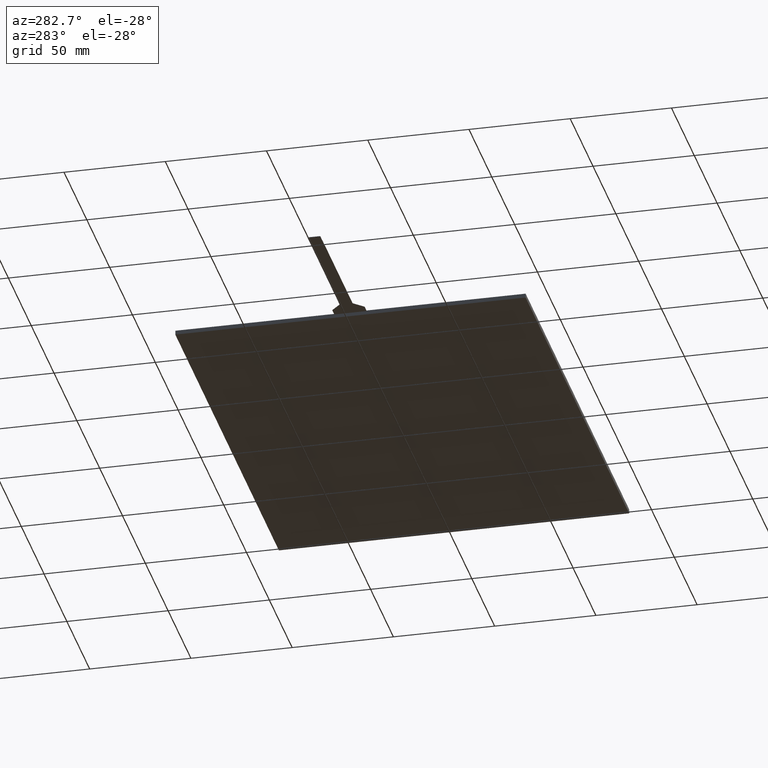
[diagram: clean part render]
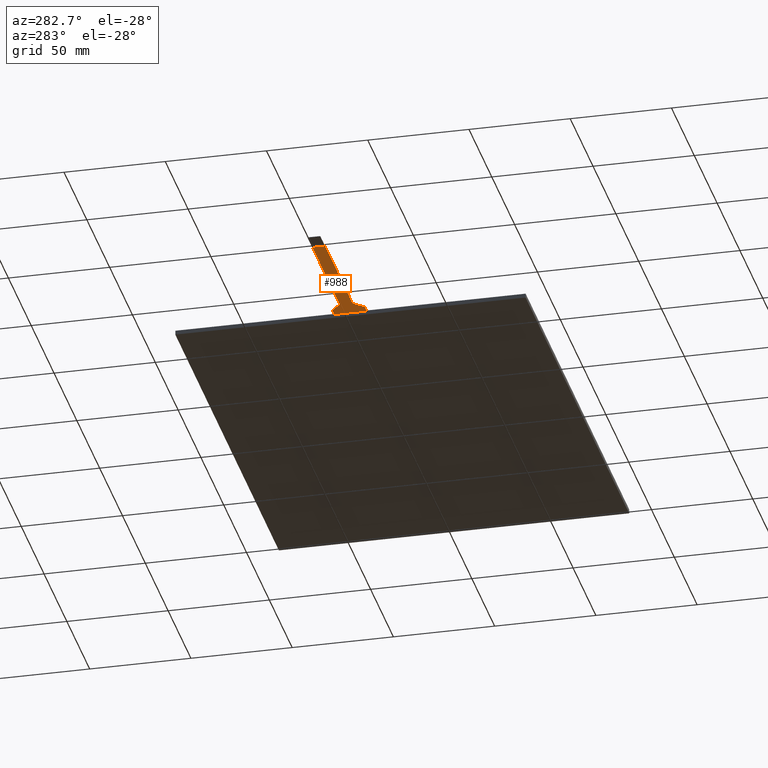
[diagram: same view with one face highlighted and labeled with its STEP entity id]
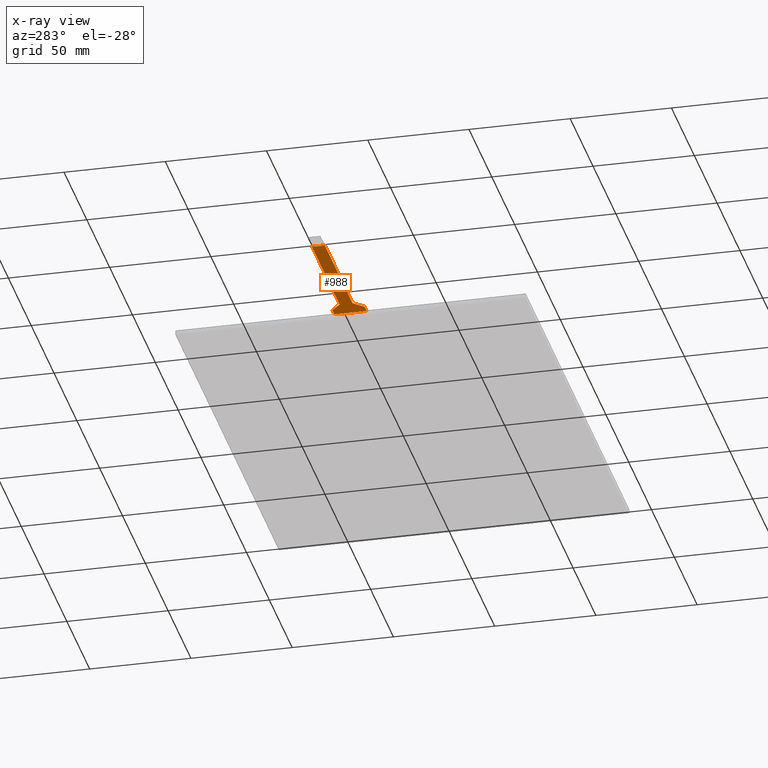
[diagram: x-ray of the same camera — body ghosted, the highlighted face saturated]
A machine part, auxiliary view. The second image highlights one B-rep face of the part: STEP entity #988.
The next image is the same camera in x-ray: the body ghosted, the highlighted face saturated — about 0% of this face is hidden behind the body in this view.
In plain terms, the highlighted planar face has unit normal (0, 0, -1).
Its self-contained STEP definition (entity closure, byte-faithful):
#56=PLANE('',#1071);
#107=FACE_OUTER_BOUND('',#158,.T.);
#158=EDGE_LOOP('',(#776,#777,#778,#779,#780,#781,#782,#783,#784,#785,#786,
#787));
#228=LINE('',#1433,#354);
#241=LINE('',#1469,#367);
#247=LINE('',#1487,#373);
#249=LINE('',#1491,#375);
#250=LINE('',#1492,#376);
#251=LINE('',#1493,#377);
#252=LINE('',#1495,#378);
#253=LINE('',#1496,#379);
#354=VECTOR('',#1160,10.);
#367=VECTOR('',#1189,10.);
#373=VECTOR('',#1209,10.);
#375=VECTOR('',#1213,10.);
#376=VECTOR('',#1214,10.);
#377=VECTOR('',#1215,10.);
#378=VECTOR('',#1216,10.);
#379=VECTOR('',#1217,10.);
#455=CIRCLE('',#1057,1.);
#460=CIRCLE('',#1065,1.);
#461=CIRCLE('',#1067,1.);
#462=CIRCLE('',#1069,1.);
#491=VERTEX_POINT('',#1430);
#492=VERTEX_POINT('',#1432);
#495=VERTEX_POINT('',#1440);
#496=VERTEX_POINT('',#1441);
#507=VERTEX_POINT('',#1468);
#508=VERTEX_POINT('',#1472);
#509=VERTEX_POINT('',#1476);
#510=VERTEX_POINT('',#1480);
#511=VERTEX_POINT('',#1481);
#512=VERTEX_POINT('',#1486);
#513=VERTEX_POINT('',#1490);
#514=VERTEX_POINT('',#1494);
#588=EDGE_CURVE('',#492,#491,#228,.T.);
#592=EDGE_CURVE('',#495,#496,#455,.T.);
#606=EDGE_CURVE('',#507,#496,#241,.T.);
#608=EDGE_CURVE('',#507,#508,#460,.T.);
#610=EDGE_CURVE('',#492,#509,#461,.T.);
#612=EDGE_CURVE('',#510,#511,#462,.T.);
#615=EDGE_CURVE('',#512,#511,#247,.T.);
#617=EDGE_CURVE('',#495,#513,#249,.T.);
#618=EDGE_CURVE('',#512,#513,#250,.T.);
#619=EDGE_CURVE('',#510,#509,#251,.T.);
#620=EDGE_CURVE('',#491,#514,#252,.T.);
#621=EDGE_CURVE('',#514,#508,#253,.T.);
#776=ORIENTED_EDGE('',*,*,#592,.F.);
#777=ORIENTED_EDGE('',*,*,#617,.T.);
#778=ORIENTED_EDGE('',*,*,#618,.F.);
#779=ORIENTED_EDGE('',*,*,#615,.T.);
#780=ORIENTED_EDGE('',*,*,#612,.F.);
#781=ORIENTED_EDGE('',*,*,#619,.T.);
#782=ORIENTED_EDGE('',*,*,#610,.F.);
#783=ORIENTED_EDGE('',*,*,#588,.T.);
#784=ORIENTED_EDGE('',*,*,#620,.T.);
#785=ORIENTED_EDGE('',*,*,#621,.T.);
#786=ORIENTED_EDGE('',*,*,#608,.F.);
#787=ORIENTED_EDGE('',*,*,#606,.T.);
#988=ADVANCED_FACE('',(#107),#56,.T.);
#1057=AXIS2_PLACEMENT_3D('',#1442,#1166,#1167);
#1065=AXIS2_PLACEMENT_3D('',#1473,#1193,#1194);
#1067=AXIS2_PLACEMENT_3D('',#1477,#1198,#1199);
#1069=AXIS2_PLACEMENT_3D('',#1482,#1203,#1204);
#1071=AXIS2_PLACEMENT_3D('',#1489,#1211,#1212);
#1160=DIRECTION('',(-1.,0.,0.));
#1166=DIRECTION('center_axis',(0.,0.,1.));
#1167=DIRECTION('ref_axis',(-0.376366215351623,0.926470977387795,0.));
#1189=DIRECTION('',(0.716696943883791,0.697384750785128,0.));
#1193=DIRECTION('center_axis',(0.,0.,-1.));
#1194=DIRECTION('ref_axis',(0.376366215351623,-0.926470977387795,0.));
#1198=DIRECTION('center_axis',(0.,0.,-1.));
#1199=DIRECTION('ref_axis',(0.388982807598792,0.921245013768086,0.));
#1203=DIRECTION('center_axis',(0.,0.,1.));
#1204=DIRECTION('ref_axis',(-0.388982807598791,-0.921245013768086,0.));
#1209=DIRECTION('',(-1.,-2.0231854662873E-15,0.));
#1211=DIRECTION('center_axis',(0.,0.,-1.));
#1212=DIRECTION('ref_axis',(-1.,0.,0.));
#1213=DIRECTION('',(1.,-2.0231854662873E-15,0.));
#1214=DIRECTION('',(-2.05359172185E-16,1.,0.));
#1215=DIRECTION('',(-0.697384750785127,0.716696943883791,0.));
#1216=DIRECTION('',(0.,1.,0.));
#1217=DIRECTION('',(1.,3.77412926218183E-16,0.));
#1430=CARTESIAN_POINT('',(-186.,-3.12500000000002,-0.3));
#1432=CARTESIAN_POINT('',(-125.555873722342,-3.12500000000001,-0.3));
#1433=CARTESIAN_POINT('',(-196.,-3.12500000000001,-0.3));
#1440=CARTESIAN_POINT('',(-119.983763620731,8.00000000000001,-0.3));
#1441=CARTESIAN_POINT('',(-120.681148371516,7.7166969438838,-0.3));
#1442=CARTESIAN_POINT('Origin',(-119.983763620731,7.00000000000001,-0.3));
#1468=CARTESIAN_POINT('',(-125.108851628484,3.40830305611623,-0.3));
#1469=CARTESIAN_POINT('',(-120.39,8.00000000000001,-0.3));
#1472=CARTESIAN_POINT('',(-125.806236379269,3.12500000000002,-0.3));
#1473=CARTESIAN_POINT('Origin',(-125.806236379269,4.12500000000002,-0.3));
#1476=CARTESIAN_POINT('',(-124.839176778459,-3.42761524921489,-0.3));
#1477=CARTESIAN_POINT('Origin',(-125.555873722342,-4.12500000000001,-0.3));
#1480=CARTESIAN_POINT('',(-120.684460946092,-7.69738475078513,-0.3));
#1481=CARTESIAN_POINT('',(-119.967764002209,-8.00000000000001,-0.3));
#1482=CARTESIAN_POINT('Origin',(-119.967764002209,-7.00000000000001,-0.3));
#1486=CARTESIAN_POINT('',(-116.,-8.,-0.3));
#1487=CARTESIAN_POINT('',(-120.39,-8.00000000000001,-0.3));
#1489=CARTESIAN_POINT('Origin',(-156.,0.,-0.3));
#1490=CARTESIAN_POINT('',(-116.,8.,-0.3));
#1491=CARTESIAN_POINT('',(-116.,8.,-0.3));
#1492=CARTESIAN_POINT('',(-116.,-43.25,-0.3));
#1493=CARTESIAN_POINT('',(-125.133637724551,-3.12500000000001,-0.3));
#1494=CARTESIAN_POINT('',(-186.,3.12499999999999,-0.3));
#1495=CARTESIAN_POINT('',(-186.,1.5625,-0.3));
#1496=CARTESIAN_POINT('',(-125.4,3.12500000000002,-0.3));